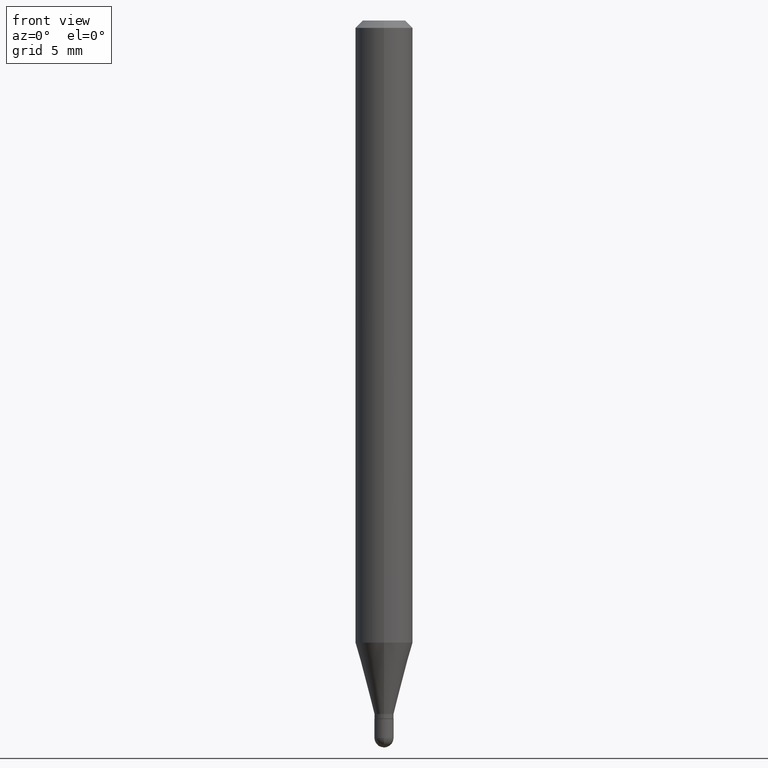
[diagram: clean part render]
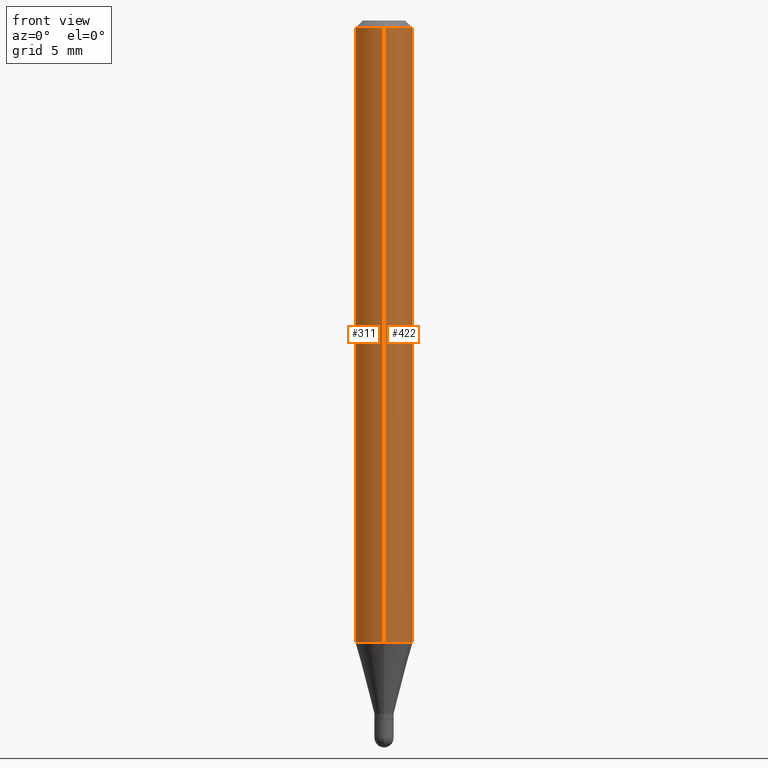
[diagram: same view with one multi-face feature highlighted, each face labeled with its STEP entity id]
A machine part, front view. The highlighted faces form ONE feature: a constant-radius fillet chain: 2 tangent blend faces with common blend radius 1.4999 mm. The faces share edges in the B-rep.
Their STEP definitions:
[1] entity #422 (Cylinder):
#45 = CARTESIAN_POINT ( 'NONE',  ( 3.130790046417451577E-29, -4.469956264772435367E-15, -1.280243800722164815 ) ) ;
#64 = VERTEX_POINT ( 'NONE', #138 ) ;
#82 = DIRECTION ( 'NONE',  ( -2.445463937924498510E-29, 3.491488310469463520E-15, 1.000000000000000000 ) ) ;
#107 = ORIENTED_EDGE ( 'NONE', *, *, #191, .F. ) ;
#130 = DIRECTION ( 'NONE',  ( -6.982962677686265922E-15, -1.000000000000000000, 4.626330217890369336E-15 ) ) ;
#131 = VECTOR ( 'NONE', #140, 39.37007874015748143 ) ;
#138 = CARTESIAN_POINT ( 'NONE',  ( 4.195754854663702092E-16, 0.05904999999999550886, -1.280243800722165037 ) ) ;
#140 = DIRECTION ( 'NONE',  ( -2.445463937924498230E-29, 3.491488310469463914E-15, 1.000000000000000000 ) ) ;
#149 = AXIS2_PLACEMENT_3D ( 'NONE', #153, #269, #349 ) ;
#153 = CARTESIAN_POINT ( 'NONE',  ( 3.668195906886753511E-31, -5.237232465704203883E-17, -0.01500000000000002373 ) ) ;
#154 = DIRECTION ( 'NONE',  ( -6.982962677686265922E-15, -1.000000000000000000, 3.491488310469463520E-15 ) ) ;
#157 = EDGE_CURVE ( 'NONE', #466, #169, #265, .T. ) ;
#169 = VERTEX_POINT ( 'NONE', #251 ) ;
#191 = EDGE_CURVE ( 'NONE', #322, #466, #317, .T. ) ;
#205 = EDGE_LOOP ( 'NONE', ( #279, #211, #319, #107 ) ) ;
#207 = EDGE_CURVE ( 'NONE', #322, #64, #430, .T. ) ;
#211 = ORIENTED_EDGE ( 'NONE', *, *, #398, .T. ) ;
#220 = DIRECTION ( 'NONE',  ( -2.445463937924498230E-29, 3.491488310469463914E-15, 1.000000000000000000 ) ) ;
#237 = AXIS2_PLACEMENT_3D ( 'NONE', #45, #82, #130 ) ;
#251 = CARTESIAN_POINT ( 'NONE',  ( 4.195754854663707023E-16, 0.05904999999999995669, -0.01500000000000023016 ) ) ;
#265 = CIRCLE ( 'NONE', #149, 0.05904999999999999832 ) ;
#269 = DIRECTION ( 'NONE',  ( -2.445463937924498510E-29, 3.491488310469463520E-15, 1.000000000000000000 ) ) ;
#272 = CARTESIAN_POINT ( 'NONE',  ( 4.195754854663390985E-16, 0.05904999999999999832, -2.061723847332218062E-16 ) ) ;
#277 = CARTESIAN_POINT ( 'NONE',  ( -4.123439461173739834E-16, -0.05904999999999999832, 2.061723847332218062E-16 ) ) ;
#279 = ORIENTED_EDGE ( 'NONE', *, *, #207, .T. ) ;
#287 = CARTESIAN_POINT ( 'NONE',  ( -4.123439461173736383E-16, -0.05905000000000005383, -0.01499999999999981730 ) ) ;
#316 = VECTOR ( 'NONE', #220, 39.37007874015748143 ) ;
#317 = LINE ( 'NONE', #277, #316 ) ;
#319 = ORIENTED_EDGE ( 'NONE', *, *, #157, .F. ) ;
#322 = VERTEX_POINT ( 'NONE', #446 ) ;
#349 = DIRECTION ( 'NONE',  ( -6.982962677686265922E-15, -1.000000000000000000, 3.505890868245046092E-15 ) ) ;
#350 = CYLINDRICAL_SURFACE ( 'NONE', #357, 0.05904999999999999832 ) ;
#352 = DIRECTION ( 'NONE',  ( -2.445463937924498510E-29, 3.491488310469463520E-15, 1.000000000000000000 ) ) ;
#357 = AXIS2_PLACEMENT_3D ( 'NONE', #495, #352, #154 ) ;
#387 = FACE_OUTER_BOUND ( 'NONE', #205, .T. ) ;
#398 = EDGE_CURVE ( 'NONE', #64, #169, #458, .T. ) ;
#422 = ADVANCED_FACE ( 'NONE', ( #387 ), #350, .T. ) ;
#430 = CIRCLE ( 'NONE', #237, 0.05904999999999999832 ) ;
#446 = CARTESIAN_POINT ( 'NONE',  ( -4.123439461173428234E-16, -0.05905000000000448779, -1.280243800722164371 ) ) ;
#458 = LINE ( 'NONE', #272, #131 ) ;
#466 = VERTEX_POINT ( 'NONE', #287 ) ;
#495 = CARTESIAN_POINT ( 'NONE',  ( 0.000000000000000000, 0.000000000000000000, 0.000000000000000000 ) ) ;
[2] entity #311 (Cylinder):
#5 = ORIENTED_EDGE ( 'NONE', *, *, #262, .F. ) ;
#15 = DIRECTION ( 'NONE',  ( -2.445463937924498510E-29, 3.491488310469463520E-15, 1.000000000000000000 ) ) ;
#19 = FACE_OUTER_BOUND ( 'NONE', #429, .T. ) ;
#64 = VERTEX_POINT ( 'NONE', #138 ) ;
#78 = CARTESIAN_POINT ( 'NONE',  ( 3.130790046417451577E-29, -4.469956264772435367E-15, -1.280243800722164815 ) ) ;
#93 = DIRECTION ( 'NONE',  ( -2.445463937924498510E-29, 3.491488310469463520E-15, 1.000000000000000000 ) ) ;
#110 = ORIENTED_EDGE ( 'NONE', *, *, #398, .F. ) ;
#125 = DIRECTION ( 'NONE',  ( -6.982962677686265922E-15, -1.000000000000000000, 3.505890868245046092E-15 ) ) ;
#131 = VECTOR ( 'NONE', #140, 39.37007874015748143 ) ;
#138 = CARTESIAN_POINT ( 'NONE',  ( 4.195754854663702092E-16, 0.05904999999999550886, -1.280243800722165037 ) ) ;
#140 = DIRECTION ( 'NONE',  ( -2.445463937924498230E-29, 3.491488310469463914E-15, 1.000000000000000000 ) ) ;
#169 = VERTEX_POINT ( 'NONE', #251 ) ;
#177 = CARTESIAN_POINT ( 'NONE',  ( 3.668195906886753511E-31, -5.237232465704203883E-17, -0.01500000000000002373 ) ) ;
#183 = AXIS2_PLACEMENT_3D ( 'NONE', #78, #93, #338 ) ;
#191 = EDGE_CURVE ( 'NONE', #322, #466, #317, .T. ) ;
#197 = EDGE_CURVE ( 'NONE', #64, #322, #293, .T. ) ;
#201 = AXIS2_PLACEMENT_3D ( 'NONE', #177, #472, #125 ) ;
#214 = CYLINDRICAL_SURFACE ( 'NONE', #314, 0.05904999999999999832 ) ;
#220 = DIRECTION ( 'NONE',  ( -2.445463937924498230E-29, 3.491488310469463914E-15, 1.000000000000000000 ) ) ;
#251 = CARTESIAN_POINT ( 'NONE',  ( 4.195754854663707023E-16, 0.05904999999999995669, -0.01500000000000023016 ) ) ;
#262 = EDGE_CURVE ( 'NONE', #169, #466, #418, .T. ) ;
#268 = ORIENTED_EDGE ( 'NONE', *, *, #197, .T. ) ;
#272 = CARTESIAN_POINT ( 'NONE',  ( 4.195754854663390985E-16, 0.05904999999999999832, -2.061723847332218062E-16 ) ) ;
#277 = CARTESIAN_POINT ( 'NONE',  ( -4.123439461173739834E-16, -0.05904999999999999832, 2.061723847332218062E-16 ) ) ;
#287 = CARTESIAN_POINT ( 'NONE',  ( -4.123439461173736383E-16, -0.05905000000000005383, -0.01499999999999981730 ) ) ;
#293 = CIRCLE ( 'NONE', #183, 0.05904999999999999832 ) ;
#297 = DIRECTION ( 'NONE',  ( -6.982962677686265922E-15, -1.000000000000000000, 3.491488310469463520E-15 ) ) ;
#311 = ADVANCED_FACE ( 'NONE', ( #19 ), #214, .T. ) ;
#314 = AXIS2_PLACEMENT_3D ( 'NONE', #332, #15, #297 ) ;
#316 = VECTOR ( 'NONE', #220, 39.37007874015748143 ) ;
#317 = LINE ( 'NONE', #277, #316 ) ;
#322 = VERTEX_POINT ( 'NONE', #446 ) ;
#332 = CARTESIAN_POINT ( 'NONE',  ( 0.000000000000000000, 0.000000000000000000, 0.000000000000000000 ) ) ;
#338 = DIRECTION ( 'NONE',  ( -6.982962677686265922E-15, -1.000000000000000000, 4.626330217890369336E-15 ) ) ;
#362 = ORIENTED_EDGE ( 'NONE', *, *, #191, .T. ) ;
#398 = EDGE_CURVE ( 'NONE', #64, #169, #458, .T. ) ;
#418 = CIRCLE ( 'NONE', #201, 0.05904999999999999832 ) ;
#429 = EDGE_LOOP ( 'NONE', ( #110, #268, #362, #5 ) ) ;
#446 = CARTESIAN_POINT ( 'NONE',  ( -4.123439461173428234E-16, -0.05905000000000448779, -1.280243800722164371 ) ) ;
#458 = LINE ( 'NONE', #272, #131 ) ;
#466 = VERTEX_POINT ( 'NONE', #287 ) ;
#472 = DIRECTION ( 'NONE',  ( -2.445463937924498510E-29, 3.491488310469463520E-15, 1.000000000000000000 ) ) ;